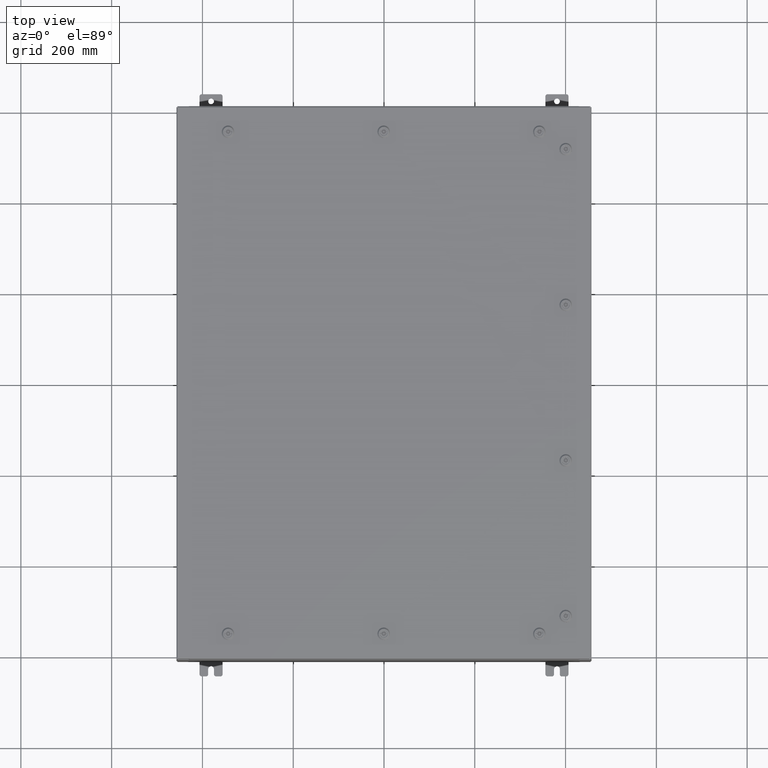
[diagram: clean part render]
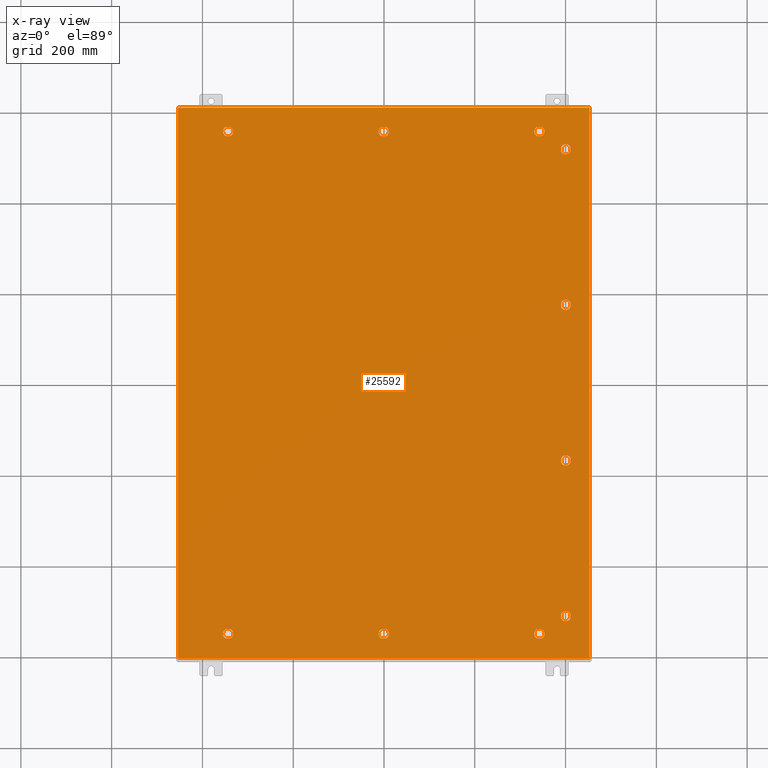
[diagram: x-ray — body ghosted, one internal face saturated and labeled with its STEP entity id]
A machine part, top view, then the same camera in x-ray: the body is ghosted and one INTERNAL B-rep face — a face not visible from any outside direction — is saturated and labeled: STEP entity #25592.
In plain terms, the highlighted planar face has unit normal (0, 0, -1).
Its self-contained STEP definition (entity closure, byte-faithful):
#128 = CARTESIAN_POINT ( 'NONE',  ( 13.94249999999998500, -21.78780000000000400, -0.07470000000000003000 ) ) ;
#283 = DIRECTION ( 'NONE',  ( -0.0000000000000000000, -0.0000000000000000000, 1.000000000000000000 ) ) ;
#345 = EDGE_CURVE ( 'NONE', #15234, #38640, #32799, .T. ) ;
#551 = DIRECTION ( 'NONE',  ( -1.000000000000000000, 2.469467112916857400E-015, 0.0000000000000000000 ) ) ;
#585 = AXIS2_PLACEMENT_3D ( 'NONE', #6349, #23238, #31363 ) ;
#697 = DIRECTION ( 'NONE',  ( -1.000000000000000000, 0.0000000000000000000, 0.0000000000000000000 ) ) ;
#903 = CARTESIAN_POINT ( 'NONE',  ( 15.39280000000001400, 6.550547624732131700, -0.07470000000000003000 ) ) ;
#1012 = DIRECTION ( 'NONE',  ( -0.0000000000000000000, -0.0000000000000000000, 1.000000000000000000 ) ) ;
#1084 = FACE_BOUND ( 'NONE', #34563, .T. ) ;
#1277 = DIRECTION ( 'NONE',  ( -5.478697338139280800E-015, 1.000000000000000000, 0.0000000000000000000 ) ) ;
#1287 = EDGE_LOOP ( 'NONE', ( #32098, #57663, #62778, #62015, #17317 ) ) ;
#1304 = AXIS2_PLACEMENT_3D ( 'NONE', #57431, #25663, #62815 ) ;
#2270 = EDGE_CURVE ( 'NONE', #43374, #15234, #60881, .T. ) ;
#2485 = DIRECTION ( 'NONE',  ( -1.095739467627835000E-014, -1.000000000000000000, 0.0000000000000000000 ) ) ;
#2588 = VERTEX_POINT ( 'NONE', #11324 ) ;
#2657 = CIRCLE ( 'NONE', #66948, 0.4424999999999983400 ) ;
#2726 = FACE_BOUND ( 'NONE', #47332, .T. ) ;
#2907 = ORIENTED_EDGE ( 'NONE', *, *, #23919, .T. ) ;
#2908 = DIRECTION ( 'NONE',  ( -1.000000000000000000, 1.095739467627836300E-014, 0.0000000000000000000 ) ) ;
#2909 = LINE ( 'NONE', #64652, #29454 ) ;
#3208 = EDGE_CURVE ( 'NONE', #23237, #14007, #13445, .T. ) ;
#3346 = LINE ( 'NONE', #49253, #59794 ) ;
#3777 = CARTESIAN_POINT ( 'NONE',  ( 0.4425000000000125500, -21.78780000000000400, -0.07470000000000003000 ) ) ;
#3887 = EDGE_CURVE ( 'NONE', #28466, #36714, #59191, .T. ) ;
#4427 = CARTESIAN_POINT ( 'NONE',  ( -13.69945237526786900, 21.39280000000001200, -0.07470000000000003000 ) ) ;
#4448 = DIRECTION ( 'NONE',  ( -0.0000000000000000000, -0.0000000000000000000, 1.000000000000000000 ) ) ;
#4587 = VERTEX_POINT ( 'NONE', #12378 ) ;
#4760 = AXIS2_PLACEMENT_3D ( 'NONE', #42109, #10313, #47441 ) ;
#5199 = EDGE_LOOP ( 'NONE', ( #32300, #60750, #53027, #47316 ) ) ;
#5725 = VERTEX_POINT ( 'NONE', #11120 ) ;
#5916 = DIRECTION ( 'NONE',  ( -1.000000000000000000, 0.0000000000000000000, 0.0000000000000000000 ) ) ;
#5974 = EDGE_CURVE ( 'NONE', #51132, #19643, #34920, .T. ) ;
#6225 = DIRECTION ( 'NONE',  ( -0.0000000000000000000, -0.0000000000000000000, 1.000000000000000000 ) ) ;
#6349 = CARTESIAN_POINT ( 'NONE',  ( -13.49999999999998600, -21.78780000000000800, -0.07470000000000003000 ) ) ;
#6832 = CARTESIAN_POINT ( 'NONE',  ( 16.18280000000000400, -6.949452375267900300, -0.07470000000000003000 ) ) ;
#6896 = VERTEX_POINT ( 'NONE', #23674 ) ;
#7295 = LINE ( 'NONE', #27938, #19754 ) ;
#7299 = CIRCLE ( 'NONE', #64750, 0.4424999999999961700 ) ;
#7303 = ORIENTED_EDGE ( 'NONE', *, *, #2270, .T. ) ;
#7397 = CARTESIAN_POINT ( 'NONE',  ( -13.69945237526786900, -22.18280000000000700, -0.07470000000000003000 ) ) ;
#7480 = ORIENTED_EDGE ( 'NONE', *, *, #59427, .T. ) ;
#7615 = VECTOR ( 'NONE', #31162, 39.37007874015748100 ) ;
#8151 = LINE ( 'NONE', #64610, #38095 ) ;
#8369 = CIRCLE ( 'NONE', #4760, 0.4424999999999983400 ) ;
#8652 = EDGE_CURVE ( 'NONE', #19950, #2588, #29890, .T. ) ;
#8801 = CARTESIAN_POINT ( 'NONE',  ( -17.84979999999999500, 23.84980000000000900, -0.07470000000000129300 ) ) ;
#9142 = CARTESIAN_POINT ( 'NONE',  ( 13.69945237526786700, 22.18280000000000400, -0.07470000000000003000 ) ) ;
#9593 = EDGE_CURVE ( 'NONE', #30109, #28466, #54708, .T. ) ;
#9775 = CARTESIAN_POINT ( 'NONE',  ( -13.69945237526786700, 22.18280000000000400, -0.07470000000000003000 ) ) ;
#10276 = ORIENTED_EDGE ( 'NONE', *, *, #38667, .T. ) ;
#10313 = DIRECTION ( 'NONE',  ( -0.0000000000000000000, -0.0000000000000000000, 1.000000000000000000 ) ) ;
#10608 = CARTESIAN_POINT ( 'NONE',  ( 16.18280000000000700, 6.949452375267900300, -0.07470000000000000300 ) ) ;
#10652 = VECTOR ( 'NONE', #18757, 39.37007874015748100 ) ;
#10699 = VECTOR ( 'NONE', #54441, 39.37007874015748100 ) ;
#10891 = ORIENTED_EDGE ( 'NONE', *, *, #3208, .T. ) ;
#10897 = CARTESIAN_POINT ( 'NONE',  ( -13.30054762473209400, 22.18280000000000000, -0.07470000000000003000 ) ) ;
#10923 = CARTESIAN_POINT ( 'NONE',  ( 17.84980000000000200, 23.84980000000000200, -0.07470000000000000300 ) ) ;
#11120 = CARTESIAN_POINT ( 'NONE',  ( -13.30054762473209400, 22.18280000000000000, -0.07470000000000003000 ) ) ;
#11324 = CARTESIAN_POINT ( 'NONE',  ( 13.30054762473209500, -22.18280000000000000, -0.07470000000000003000 ) ) ;
#11334 = DIRECTION ( 'NONE',  ( -1.000000000000000000, 0.0000000000000000000, 0.0000000000000000000 ) ) ;
#11501 = DIRECTION ( 'NONE',  ( -1.000000000000000000, -1.095739467627832000E-014, 0.0000000000000000000 ) ) ;
#11521 = CIRCLE ( 'NONE', #41741, 0.4424999999999983400 ) ;
#11565 = ORIENTED_EDGE ( 'NONE', *, *, #41498, .T. ) ;
#11976 = VECTOR ( 'NONE', #54831, 39.37007874015748100 ) ;
#12220 = CARTESIAN_POINT ( 'NONE',  ( -0.1994523752678689600, 21.39280000000001200, -0.07470000000000003000 ) ) ;
#12378 = CARTESIAN_POINT ( 'NONE',  ( 16.18280000000000700, 6.550547624732131700, -0.07470000000000003000 ) ) ;
#12486 = CARTESIAN_POINT ( 'NONE',  ( 15.39280000000001900, 20.05054762473213300, -0.07470000000000003000 ) ) ;
#12542 = ORIENTED_EDGE ( 'NONE', *, *, #54392, .T. ) ;
#12619 = EDGE_CURVE ( 'NONE', #41891, #29641, #25448, .T. ) ;
#12657 = AXIS2_PLACEMENT_3D ( 'NONE', #38016, #6225, #43336 ) ;
#12770 = CARTESIAN_POINT ( 'NONE',  ( 1.529834876451987200E-014, 21.78780000000000400, -0.07470000000000003000 ) ) ;
#12985 = ORIENTED_EDGE ( 'NONE', *, *, #46985, .T. ) ;
#13385 = CARTESIAN_POINT ( 'NONE',  ( 15.39280000000002800, -20.44945237526790300, -0.07470000000000003000 ) ) ;
#13445 = CIRCLE ( 'NONE', #68491, 0.4424999999999983400 ) ;
#13480 = FACE_BOUND ( 'NONE', #61596, .T. ) ;
#13717 = EDGE_CURVE ( 'NONE', #4587, #39098, #66060, .T. ) ;
#14007 = VERTEX_POINT ( 'NONE', #7397 ) ;
#14057 = LINE ( 'NONE', #58902, #40661 ) ;
#14059 = ORIENTED_EDGE ( 'NONE', *, *, #50736, .T. ) ;
#14102 = DIRECTION ( 'NONE',  ( -1.000000000000000000, -0.0000000000000000000, -0.0000000000000000000 ) ) ;
#14904 = ORIENTED_EDGE ( 'NONE', *, *, #26465, .T. ) ;
#14917 = DIRECTION ( 'NONE',  ( -0.0000000000000000000, -0.0000000000000000000, 1.000000000000000000 ) ) ;
#15012 = CARTESIAN_POINT ( 'NONE',  ( -13.30054762473210400, -21.39280000000001500, -0.07470000000000003000 ) ) ;
#15177 = FACE_BOUND ( 'NONE', #56824, .T. ) ;
#15234 = VERTEX_POINT ( 'NONE', #128 ) ;
#15245 = CARTESIAN_POINT ( 'NONE',  ( 15.39280000000002200, -20.05054762473213300, -0.07470000000000003000 ) ) ;
#15309 = CARTESIAN_POINT ( 'NONE',  ( -13.30054762473210200, 21.39280000000001200, -0.07470000000000000300 ) ) ;
#15356 = CARTESIAN_POINT ( 'NONE',  ( 15.39280000000002200, 20.44945237526790300, -0.07470000000000003000 ) ) ;
#15569 = LINE ( 'NONE', #34669, #26364 ) ;
#15614 = DIRECTION ( 'NONE',  ( -0.0000000000000000000, -0.0000000000000000000, 1.000000000000000000 ) ) ;
#16160 = CARTESIAN_POINT ( 'NONE',  ( 13.30054762473210200, 21.39280000000001200, -0.07470000000000003000 ) ) ;
#16354 = CARTESIAN_POINT ( 'NONE',  ( 13.69945237526786900, -22.18280000000000400, -0.07470000000000003000 ) ) ;
#16548 = VERTEX_POINT ( 'NONE', #49870 ) ;
#16575 = CARTESIAN_POINT ( 'NONE',  ( 13.49999999999998600, 21.78780000000000400, -0.07470000000000003000 ) ) ;
#16656 = LINE ( 'NONE', #28464, #59005 ) ;
#16743 = CARTESIAN_POINT ( 'NONE',  ( 15.78780000000000800, -6.750000000000014200, -0.07470000000000003000 ) ) ;
#17317 = ORIENTED_EDGE ( 'NONE', *, *, #39551, .T. ) ;
#17453 = DIRECTION ( 'NONE',  ( -0.0000000000000000000, -0.0000000000000000000, 1.000000000000000000 ) ) ;
#17472 = DIRECTION ( 'NONE',  ( -1.000000000000000000, 0.0000000000000000000, 0.0000000000000000000 ) ) ;
#17526 = EDGE_CURVE ( 'NONE', #64903, #68391, #67983, .T. ) ;
#17666 = ORIENTED_EDGE ( 'NONE', *, *, #56444, .T. ) ;
#17683 = CIRCLE ( 'NONE', #67674, 0.4424999999999983400 ) ;
#17918 = ORIENTED_EDGE ( 'NONE', *, *, #38963, .T. ) ;
#17936 = EDGE_CURVE ( 'NONE', #16548, #21527, #28070, .T. ) ;
#18135 = DIRECTION ( 'NONE',  ( -1.000000000000000000, 0.0000000000000000000, 0.0000000000000000000 ) ) ;
#18270 = CARTESIAN_POINT ( 'NONE',  ( 15.39280000000001900, 6.949452375267904700, -0.07470000000000003000 ) ) ;
#18476 = EDGE_LOOP ( 'NONE', ( #55251, #7480, #14059, #65283, #39304 ) ) ;
#18757 = DIRECTION ( 'NONE',  ( 1.095739467627844000E-014, -1.000000000000000000, 0.0000000000000000000 ) ) ;
#18798 = ORIENTED_EDGE ( 'NONE', *, *, #8652, .T. ) ;
#18965 = EDGE_CURVE ( 'NONE', #37781, #35411, #25632, .T. ) ;
#19164 = ORIENTED_EDGE ( 'NONE', *, *, #43164, .T. ) ;
#19382 = EDGE_CURVE ( 'NONE', #35411, #43064, #31445, .T. ) ;
#19504 = DIRECTION ( 'NONE',  ( 0.0000000000000000000, -1.000000000000000000, 0.0000000000000000000 ) ) ;
#19643 = VERTEX_POINT ( 'NONE', #15012 ) ;
#19754 = VECTOR ( 'NONE', #54575, 39.37007874015748100 ) ;
#19950 = VERTEX_POINT ( 'NONE', #23317 ) ;
#20204 = CARTESIAN_POINT ( 'NONE',  ( 13.49999999999998600, -21.78780000000000400, -0.07470000000000003000 ) ) ;
#20477 = PLANE ( 'NONE',  #66037 ) ;
#21527 = VERTEX_POINT ( 'NONE', #49791 ) ;
#21684 = ORIENTED_EDGE ( 'NONE', *, *, #30513, .T. ) ;
#21750 = VERTEX_POINT ( 'NONE', #9142 ) ;
#21897 = DIRECTION ( 'NONE',  ( -1.000000000000000000, 0.0000000000000000000, 0.0000000000000000000 ) ) ;
#22075 = DIRECTION ( 'NONE',  ( -1.000000000000000000, 0.0000000000000000000, 0.0000000000000000000 ) ) ;
#22244 = ORIENTED_EDGE ( 'NONE', *, *, #5974, .T. ) ;
#22619 = AXIS2_PLACEMENT_3D ( 'NONE', #30278, #67430, #35607 ) ;
#22842 = VERTEX_POINT ( 'NONE', #9775 ) ;
#23121 = AXIS2_PLACEMENT_3D ( 'NONE', #32066, #283, #37427 ) ;
#23141 = LINE ( 'NONE', #43798, #10699 ) ;
#23237 = VERTEX_POINT ( 'NONE', #61185 ) ;
#23238 = DIRECTION ( 'NONE',  ( -0.0000000000000000000, -0.0000000000000000000, 1.000000000000000000 ) ) ;
#23317 = CARTESIAN_POINT ( 'NONE',  ( 13.30054762473210400, -21.39280000000001200, -0.07470000000000000300 ) ) ;
#23674 = CARTESIAN_POINT ( 'NONE',  ( 16.18280000000001500, -20.44945237526789600, -0.07470000000000003000 ) ) ;
#23675 = ORIENTED_EDGE ( 'NONE', *, *, #52489, .T. ) ;
#23779 = CARTESIAN_POINT ( 'NONE',  ( 13.30054762473209500, -22.18280000000000000, -0.07470000000000003000 ) ) ;
#23826 = EDGE_CURVE ( 'NONE', #68391, #37509, #43547, .T. ) ;
#23919 = EDGE_CURVE ( 'NONE', #64970, #30279, #68488, .T. ) ;
#23997 = ORIENTED_EDGE ( 'NONE', *, *, #19382, .T. ) ;
#24471 = CARTESIAN_POINT ( 'NONE',  ( 1.529834876451987200E-014, 21.78780000000000400, -0.07470000000000003000 ) ) ;
#24828 = CARTESIAN_POINT ( 'NONE',  ( -13.30054762473209500, -22.18280000000000400, -0.07470000000000000300 ) ) ;
#25448 = LINE ( 'NONE', #45902, #55317 ) ;
#25592 = ADVANCED_FACE ( 'NONE', ( #57513, #2726, #15177, #1084, #55846, #29274, #41758, #27644, #13480, #68354, #54185 ), #20477, .T. ) ;
#25632 = CIRCLE ( 'NONE', #54236, 0.4424999999999961700 ) ;
#25663 = DIRECTION ( 'NONE',  ( -0.0000000000000000000, -0.0000000000000000000, 1.000000000000000000 ) ) ;
#25726 = EDGE_LOOP ( 'NONE', ( #51620, #23997, #17918, #47885 ) ) ;
#25767 = VECTOR ( 'NONE', #2485, 39.37007874015748100 ) ;
#25812 = DIRECTION ( 'NONE',  ( -1.000000000000000000, 0.0000000000000000000, -0.0000000000000000000 ) ) ;
#26034 = DIRECTION ( 'NONE',  ( -0.0000000000000000000, -0.0000000000000000000, 1.000000000000000000 ) ) ;
#26364 = VECTOR ( 'NONE', #2908, 39.37007874015748100 ) ;
#26465 = EDGE_CURVE ( 'NONE', #30279, #16548, #2657, .T. ) ;
#26526 = VECTOR ( 'NONE', #50002, 39.37007874015748100 ) ;
#27180 = CARTESIAN_POINT ( 'NONE',  ( 15.78780000000001000, 6.750000000000014200, -0.07470000000000003000 ) ) ;
#27408 = LINE ( 'NONE', #16160, #53965 ) ;
#27600 = EDGE_CURVE ( 'NONE', #62624, #34473, #8369, .T. ) ;
#27644 = FACE_BOUND ( 'NONE', #49436, .T. ) ;
#27938 = CARTESIAN_POINT ( 'NONE',  ( 16.18280000000001500, -20.44945237526789600, -0.07470000000000003000 ) ) ;
#27941 = CARTESIAN_POINT ( 'NONE',  ( 16.18280000000001100, 20.44945237526789600, -0.07470000000000000300 ) ) ;
#28070 = LINE ( 'NONE', #28742, #68808 ) ;
#28336 = VECTOR ( 'NONE', #67961, 39.37007874015748100 ) ;
#28464 = CARTESIAN_POINT ( 'NONE',  ( -17.84979999999999800, -23.84980000000000200, -0.07469999999999804600 ) ) ;
#28466 = VERTEX_POINT ( 'NONE', #47097 ) ;
#28502 = ORIENTED_EDGE ( 'NONE', *, *, #52916, .T. ) ;
#28742 = CARTESIAN_POINT ( 'NONE',  ( 15.39280000000001500, -6.949452375267904700, -0.07470000000000003000 ) ) ;
#28874 = DIRECTION ( 'NONE',  ( -0.0000000000000000000, -0.0000000000000000000, 1.000000000000000000 ) ) ;
#29039 = VERTEX_POINT ( 'NONE', #51572 ) ;
#29101 = EDGE_CURVE ( 'NONE', #34473, #5725, #46475, .T. ) ;
#29127 = DIRECTION ( 'NONE',  ( -0.0000000000000000000, -0.0000000000000000000, 1.000000000000000000 ) ) ;
#29156 = CARTESIAN_POINT ( 'NONE',  ( 0.1994523752679054600, -22.18280000000000400, -0.07470000000000000300 ) ) ;
#29274 = FACE_BOUND ( 'NONE', #63164, .T. ) ;
#29454 = VECTOR ( 'NONE', #11501, 39.37007874015748100 ) ;
#29641 = VERTEX_POINT ( 'NONE', #67297 ) ;
#29890 = CIRCLE ( 'NONE', #12657, 0.4424999999999961700 ) ;
#29922 = ORIENTED_EDGE ( 'NONE', *, *, #27600, .T. ) ;
#29938 = CARTESIAN_POINT ( 'NONE',  ( 15.78780000000001800, -20.25000000000001400, -0.07470000000000003000 ) ) ;
#30096 = EDGE_CURVE ( 'NONE', #41389, #64903, #23141, .T. ) ;
#30109 = VERTEX_POINT ( 'NONE', #12220 ) ;
#30278 = CARTESIAN_POINT ( 'NONE',  ( 13.49999999999998600, 21.78780000000000400, -0.07470000000000003000 ) ) ;
#30279 = VERTEX_POINT ( 'NONE', #39583 ) ;
#30357 = CARTESIAN_POINT ( 'NONE',  ( -0.1994523752678657700, -22.18280000000000400, -0.07470000000000003000 ) ) ;
#30421 = EDGE_CURVE ( 'NONE', #60883, #4587, #11521, .T. ) ;
#30513 = EDGE_CURVE ( 'NONE', #14007, #62423, #8151, .T. ) ;
#30673 = CIRCLE ( 'NONE', #41228, 0.4424999999999961700 ) ;
#31000 = VERTEX_POINT ( 'NONE', #44504 ) ;
#31069 = CARTESIAN_POINT ( 'NONE',  ( 15.78780000000001500, 20.25000000000001400, -0.07470000000000003000 ) ) ;
#31162 = DIRECTION ( 'NONE',  ( 0.0000000000000000000, 1.000000000000000000, 0.0000000000000000000 ) ) ;
#31363 = DIRECTION ( 'NONE',  ( -1.000000000000000000, 0.0000000000000000000, 0.0000000000000000000 ) ) ;
#31445 = LINE ( 'NONE', #13385, #10652 ) ;
#31459 = VERTEX_POINT ( 'NONE', #43247 ) ;
#31460 = EDGE_CURVE ( 'NONE', #58145, #47366, #54697, .T. ) ;
#31471 = CARTESIAN_POINT ( 'NONE',  ( 1.529834876451987200E-014, -21.78780000000000400, -0.07470000000000003000 ) ) ;
#32066 = CARTESIAN_POINT ( 'NONE',  ( 1.529834876451987200E-014, -21.78780000000000400, -0.07470000000000003000 ) ) ;
#32098 = ORIENTED_EDGE ( 'NONE', *, *, #53920, .T. ) ;
#32300 = ORIENTED_EDGE ( 'NONE', *, *, #48219, .F. ) ;
#32343 = DIRECTION ( 'NONE',  ( -0.0000000000000000000, -0.0000000000000000000, 1.000000000000000000 ) ) ;
#32491 = DIRECTION ( 'NONE',  ( -0.0000000000000000000, -0.0000000000000000000, 1.000000000000000000 ) ) ;
#32522 = DIRECTION ( 'NONE',  ( -1.000000000000000000, 0.0000000000000000000, 0.0000000000000000000 ) ) ;
#32671 = CARTESIAN_POINT ( 'NONE',  ( 0.4425000000000125500, 21.78780000000000400, -0.07470000000000003000 ) ) ;
#32673 = EDGE_CURVE ( 'NONE', #36714, #38974, #33871, .T. ) ;
#32796 = CARTESIAN_POINT ( 'NONE',  ( 13.49999999999998600, 21.78780000000000400, -0.07470000000000003000 ) ) ;
#32799 = CIRCLE ( 'NONE', #36342, 0.4424999999999983400 ) ;
#32803 = DIRECTION ( 'NONE',  ( 1.000000000000000000, 1.095739467627832000E-014, 0.0000000000000000000 ) ) ;
#32960 = CARTESIAN_POINT ( 'NONE',  ( 16.18280000000000700, 6.949452375267900300, -0.07470000000000003000 ) ) ;
#33095 = AXIS2_PLACEMENT_3D ( 'NONE', #64310, #32491, #697 ) ;
#33100 = ORIENTED_EDGE ( 'NONE', *, *, #30421, .T. ) ;
#33254 = VECTOR ( 'NONE', #53353, 39.37007874015748100 ) ;
#33308 = ORIENTED_EDGE ( 'NONE', *, *, #36637, .T. ) ;
#33871 = CIRCLE ( 'NONE', #55125, 0.4424999999999972800 ) ;
#33931 = ORIENTED_EDGE ( 'NONE', *, *, #30096, .T. ) ;
#34105 = DIRECTION ( 'NONE',  ( 1.095739467627835000E-014, -1.000000000000000000, 0.0000000000000000000 ) ) ;
#34116 = AXIS2_PLACEMENT_3D ( 'NONE', #16743, #53841, #22075 ) ;
#34185 = CARTESIAN_POINT ( 'NONE',  ( -13.30054762473210200, 21.39280000000001200, -0.07470000000000003000 ) ) ;
#34207 = AXIS2_PLACEMENT_3D ( 'NONE', #32796, #1012, #38151 ) ;
#34264 = VECTOR ( 'NONE', #19504, 39.37007874015748100 ) ;
#34473 = VERTEX_POINT ( 'NONE', #51294 ) ;
#34563 = EDGE_LOOP ( 'NONE', ( #33100, #64909, #12985, #17666 ) ) ;
#34669 = CARTESIAN_POINT ( 'NONE',  ( 0.1994523752679067700, 22.18280000000000000, -0.07470000000000003000 ) ) ;
#34920 = CIRCLE ( 'NONE', #585, 0.4424999999999961700 ) ;
#35240 = CARTESIAN_POINT ( 'NONE',  ( 13.49999999999998600, -21.78780000000000400, -0.07470000000000003000 ) ) ;
#35256 = DIRECTION ( 'NONE',  ( -1.000000000000000000, 0.0000000000000000000, 0.0000000000000000000 ) ) ;
#35411 = VERTEX_POINT ( 'NONE', #15245 ) ;
#35607 = DIRECTION ( 'NONE',  ( -1.000000000000000000, 0.0000000000000000000, 0.0000000000000000000 ) ) ;
#35721 = CARTESIAN_POINT ( 'NONE',  ( 13.30054762473210200, 21.39280000000001200, -0.07470000000000003000 ) ) ;
#36077 = CIRCLE ( 'NONE', #37395, 0.4424999999999972800 ) ;
#36161 = CARTESIAN_POINT ( 'NONE',  ( 0.1994523752678995500, -21.39280000000001200, -0.07470000000000003000 ) ) ;
#36215 = CARTESIAN_POINT ( 'NONE',  ( 15.78780000000000800, -6.750000000000014200, -0.07470000000000003000 ) ) ;
#36329 = CIRCLE ( 'NONE', #22619, 0.4424999999999961700 ) ;
#36342 = AXIS2_PLACEMENT_3D ( 'NONE', #20204, #49151, #58460 ) ;
#36400 = DIRECTION ( 'NONE',  ( -1.000000000000000000, 0.0000000000000000000, 0.0000000000000000000 ) ) ;
#36637 = EDGE_CURVE ( 'NONE', #38640, #19950, #14057, .T. ) ;
#36714 = VERTEX_POINT ( 'NONE', #32671 ) ;
#36787 = DIRECTION ( 'NONE',  ( -1.000000000000000000, 9.877868451667453200E-015, 0.0000000000000000000 ) ) ;
#36921 = VERTEX_POINT ( 'NONE', #18270 ) ;
#37395 = AXIS2_PLACEMENT_3D ( 'NONE', #31471, #68611, #36787 ) ;
#37427 = DIRECTION ( 'NONE',  ( -1.000000000000000000, 0.0000000000000000000, 0.0000000000000000000 ) ) ;
#37509 = VERTEX_POINT ( 'NONE', #27941 ) ;
#37781 = VERTEX_POINT ( 'NONE', #50865 ) ;
#37939 = VERTEX_POINT ( 'NONE', #3777 ) ;
#38016 = CARTESIAN_POINT ( 'NONE',  ( 13.49999999999998600, -21.78780000000000400, -0.07470000000000003000 ) ) ;
#38095 = VECTOR ( 'NONE', #32803, 39.37007874015748100 ) ;
#38151 = DIRECTION ( 'NONE',  ( -1.000000000000000000, 0.0000000000000000000, 0.0000000000000000000 ) ) ;
#38202 = AXIS2_PLACEMENT_3D ( 'NONE', #60926, #29127, #66274 ) ;
#38640 = VERTEX_POINT ( 'NONE', #46599 ) ;
#38667 = EDGE_CURVE ( 'NONE', #37509, #41389, #7299, .T. ) ;
#38963 = EDGE_CURVE ( 'NONE', #43064, #6896, #41342, .T. ) ;
#38974 = VERTEX_POINT ( 'NONE', #61738 ) ;
#39098 = VERTEX_POINT ( 'NONE', #10608 ) ;
#39304 = ORIENTED_EDGE ( 'NONE', *, *, #48934, .T. ) ;
#39459 = AXIS2_PLACEMENT_3D ( 'NONE', #12770, #49911, #18135 ) ;
#39551 = EDGE_CURVE ( 'NONE', #38974, #65529, #15569, .T. ) ;
#39583 = CARTESIAN_POINT ( 'NONE',  ( 16.18280000000000700, -6.550547624732131700, -0.07470000000000003000 ) ) ;
#39730 = DIRECTION ( 'NONE',  ( 1.000000000000000000, 0.0000000000000000000, 0.0000000000000000000 ) ) ;
#40296 = CARTESIAN_POINT ( 'NONE',  ( 0.1994523752679067700, -22.18280000000000000, -0.07470000000000003000 ) ) ;
#40661 = VECTOR ( 'NONE', #11334, 39.37007874015748100 ) ;
#40794 = LINE ( 'NONE', #36161, #28336 ) ;
#41228 = AXIS2_PLACEMENT_3D ( 'NONE', #60687, #28874, #66036 ) ;
#41342 = CIRCLE ( 'NONE', #52731, 0.4424999999999961700 ) ;
#41389 = VERTEX_POINT ( 'NONE', #15356 ) ;
#41474 = CARTESIAN_POINT ( 'NONE',  ( 13.30054762473209400, 22.18280000000000000, -0.07470000000000000300 ) ) ;
#41498 = EDGE_CURVE ( 'NONE', #21527, #64970, #54426, .T. ) ;
#41556 = LINE ( 'NONE', #66064, #25767 ) ;
#41560 = DIRECTION ( 'NONE',  ( -1.000000000000000000, 0.0000000000000000000, 0.0000000000000000000 ) ) ;
#41741 = AXIS2_PLACEMENT_3D ( 'NONE', #64161, #32343, #551 ) ;
#41758 = FACE_BOUND ( 'NONE', #18476, .T. ) ;
#41889 = VECTOR ( 'NONE', #1277, 39.37007874015748100 ) ;
#41891 = VERTEX_POINT ( 'NONE', #10923 ) ;
#42109 = CARTESIAN_POINT ( 'NONE',  ( -13.49999999999998600, 21.78780000000000400, -0.07470000000000003000 ) ) ;
#42193 = CIRCLE ( 'NONE', #39459, 0.4424999999999969000 ) ;
#43064 = VERTEX_POINT ( 'NONE', #54874 ) ;
#43070 = CARTESIAN_POINT ( 'NONE',  ( -0.1994523752678657700, 22.18280000000000400, -0.07470000000000003000 ) ) ;
#43164 = EDGE_CURVE ( 'NONE', #2588, #43374, #46155, .T. ) ;
#43197 = DIRECTION ( 'NONE',  ( -1.000000000000000000, 0.0000000000000000000, 0.0000000000000000000 ) ) ;
#43247 = CARTESIAN_POINT ( 'NONE',  ( 13.69945237526786900, 21.39280000000001200, -0.07470000000000003000 ) ) ;
#43336 = DIRECTION ( 'NONE',  ( -1.000000000000000000, -9.877868451667478400E-015, 0.0000000000000000000 ) ) ;
#43374 = VERTEX_POINT ( 'NONE', #16354 ) ;
#43464 = AXIS2_PLACEMENT_3D ( 'NONE', #16575, #53673, #21897 ) ;
#43465 = LINE ( 'NONE', #34185, #57559 ) ;
#43547 = LINE ( 'NONE', #65084, #41889 ) ;
#43685 = DIRECTION ( 'NONE',  ( -1.000000000000000000, 9.877868451667453200E-015, 0.0000000000000000000 ) ) ;
#43798 = CARTESIAN_POINT ( 'NONE',  ( 15.39280000000002200, 20.44945237526790300, -0.07470000000000003000 ) ) ;
#43901 = CIRCLE ( 'NONE', #43464, 0.4424999999999961700 ) ;
#43946 = VECTOR ( 'NONE', #45611, 39.37007874015748100 ) ;
#44504 = CARTESIAN_POINT ( 'NONE',  ( 17.84980000000000200, -23.84979999999999800, -0.07470000000000000300 ) ) ;
#44655 = CARTESIAN_POINT ( 'NONE',  ( 0.1994523752678995500, 21.39280000000001200, -0.07470000000000003000 ) ) ;
#44736 = EDGE_CURVE ( 'NONE', #21750, #58145, #2909, .T. ) ;
#44955 = CARTESIAN_POINT ( 'NONE',  ( 0.1994523752679002700, -21.39280000000001200, -0.07470000000000003000 ) ) ;
#45352 = EDGE_CURVE ( 'NONE', #53964, #68508, #56805, .T. ) ;
#45554 = EDGE_CURVE ( 'NONE', #37939, #66182, #36077, .T. ) ;
#45611 = DIRECTION ( 'NONE',  ( 1.000000000000000000, 1.095739467627836300E-014, 0.0000000000000000000 ) ) ;
#45902 = CARTESIAN_POINT ( 'NONE',  ( 17.84980000000000200, 23.84980000000000900, -0.07469999999999804600 ) ) ;
#46155 = LINE ( 'NONE', #23779, #49496 ) ;
#46475 = CIRCLE ( 'NONE', #68402, 0.4424999999999983400 ) ;
#46579 = EDGE_CURVE ( 'NONE', #47450, #62624, #43465, .T. ) ;
#46599 = CARTESIAN_POINT ( 'NONE',  ( 13.69945237526787100, -21.39280000000001200, -0.07470000000000003000 ) ) ;
#46712 = CARTESIAN_POINT ( 'NONE',  ( 15.78780000000001800, -20.25000000000001400, -0.07470000000000003000 ) ) ;
#46918 = CARTESIAN_POINT ( 'NONE',  ( 0.0000000000000000000, 0.0000000000000000000, -0.07470000000000000300 ) ) ;
#46985 = EDGE_CURVE ( 'NONE', #39098, #36921, #17683, .T. ) ;
#47097 = CARTESIAN_POINT ( 'NONE',  ( 0.1994523752678995500, 21.39280000000001200, -0.07470000000000000300 ) ) ;
#47283 = LINE ( 'NONE', #40296, #43946 ) ;
#47316 = ORIENTED_EDGE ( 'NONE', *, *, #12619, .F. ) ;
#47320 = EDGE_CURVE ( 'NONE', #29641, #29039, #48401, .T. ) ;
#47332 = EDGE_LOOP ( 'NONE', ( #14904, #64266, #11565, #2907 ) ) ;
#47366 = VERTEX_POINT ( 'NONE', #35721 ) ;
#47402 = CARTESIAN_POINT ( 'NONE',  ( -13.49999999999998600, 21.78780000000000400, -0.07470000000000003000 ) ) ;
#47441 = DIRECTION ( 'NONE',  ( -1.000000000000000000, 0.0000000000000000000, 0.0000000000000000000 ) ) ;
#47450 = VERTEX_POINT ( 'NONE', #4427 ) ;
#47885 = ORIENTED_EDGE ( 'NONE', *, *, #55621, .T. ) ;
#47977 = ORIENTED_EDGE ( 'NONE', *, *, #50939, .T. ) ;
#48219 = EDGE_CURVE ( 'NONE', #31000, #41891, #48335, .T. ) ;
#48335 = LINE ( 'NONE', #68311, #7615 ) ;
#48401 = LINE ( 'NONE', #8801, #34264 ) ;
#48528 = DIRECTION ( 'NONE',  ( -0.0000000000000000000, -0.0000000000000000000, 1.000000000000000000 ) ) ;
#48934 = EDGE_CURVE ( 'NONE', #66182, #53964, #40794, .T. ) ;
#48943 = CARTESIAN_POINT ( 'NONE',  ( -13.05749999999999000, -21.78780000000000800, -0.07470000000000003000 ) ) ;
#49042 = LINE ( 'NONE', #10897, #33254 ) ;
#49151 = DIRECTION ( 'NONE',  ( -0.0000000000000000000, -0.0000000000000000000, 1.000000000000000000 ) ) ;
#49233 = DIRECTION ( 'NONE',  ( -0.0000000000000000000, -0.0000000000000000000, 1.000000000000000000 ) ) ;
#49253 = CARTESIAN_POINT ( 'NONE',  ( -13.30054762473210400, -21.39280000000001500, -0.07470000000000003000 ) ) ;
#49436 = EDGE_LOOP ( 'NONE', ( #62383, #28502, #57199, #60115, #62849 ) ) ;
#49496 = VECTOR ( 'NONE', #50229, 39.37007874015748100 ) ;
#49791 = CARTESIAN_POINT ( 'NONE',  ( 15.39280000000001500, -6.949452375267905600, -0.07470000000000000300 ) ) ;
#49870 = CARTESIAN_POINT ( 'NONE',  ( 15.39280000000001200, -6.550547624732131700, -0.07470000000000003000 ) ) ;
#49911 = DIRECTION ( 'NONE',  ( -0.0000000000000000000, -0.0000000000000000000, 1.000000000000000000 ) ) ;
#50002 = DIRECTION ( 'NONE',  ( 1.000000000000000000, 0.0000000000000000000, 0.0000000000000000000 ) ) ;
#50229 = DIRECTION ( 'NONE',  ( 1.000000000000000000, -1.095739467627832000E-014, 0.0000000000000000000 ) ) ;
#50736 = EDGE_CURVE ( 'NONE', #63964, #37939, #66496, .T. ) ;
#50865 = CARTESIAN_POINT ( 'NONE',  ( 16.18280000000001800, -20.05054762473213300, -0.07470000000000003000 ) ) ;
#50939 = EDGE_CURVE ( 'NONE', #5725, #22842, #49042, .T. ) ;
#51132 = VERTEX_POINT ( 'NONE', #48943 ) ;
#51294 = CARTESIAN_POINT ( 'NONE',  ( -13.05749999999998900, 21.78780000000000400, -0.07470000000000003000 ) ) ;
#51568 = EDGE_CURVE ( 'NONE', #47366, #31459, #27408, .T. ) ;
#51572 = CARTESIAN_POINT ( 'NONE',  ( -17.84979999999999800, -23.84979999999999800, -0.07470000000000000300 ) ) ;
#51620 = ORIENTED_EDGE ( 'NONE', *, *, #18965, .T. ) ;
#51951 = VECTOR ( 'NONE', #54284, 39.37007874015748100 ) ;
#52057 = DIRECTION ( 'NONE',  ( -1.000000000000000000, 0.0000000000000000000, 0.0000000000000000000 ) ) ;
#52489 = EDGE_CURVE ( 'NONE', #62423, #51132, #30673, .T. ) ;
#52731 = AXIS2_PLACEMENT_3D ( 'NONE', #29938, #67073, #35256 ) ;
#52737 = DIRECTION ( 'NONE',  ( -1.000000000000000000, 0.0000000000000000000, 0.0000000000000000000 ) ) ;
#52916 = EDGE_CURVE ( 'NONE', #59367, #21750, #43901, .T. ) ;
#53027 = ORIENTED_EDGE ( 'NONE', *, *, #47320, .F. ) ;
#53353 = DIRECTION ( 'NONE',  ( -1.000000000000000000, 1.095739467627832000E-014, 0.0000000000000000000 ) ) ;
#53673 = DIRECTION ( 'NONE',  ( -0.0000000000000000000, -0.0000000000000000000, 1.000000000000000000 ) ) ;
#53841 = DIRECTION ( 'NONE',  ( -0.0000000000000000000, -0.0000000000000000000, 1.000000000000000000 ) ) ;
#53920 = EDGE_CURVE ( 'NONE', #65529, #30109, #42193, .T. ) ;
#53964 = VERTEX_POINT ( 'NONE', #65937 ) ;
#53965 = VECTOR ( 'NONE', #58853, 39.37007874015748100 ) ;
#54185 = FACE_OUTER_BOUND ( 'NONE', #5199, .T. ) ;
#54236 = AXIS2_PLACEMENT_3D ( 'NONE', #46712, #14917, #52057 ) ;
#54284 = DIRECTION ( 'NONE',  ( -5.478697338139235000E-015, 1.000000000000000000, 0.0000000000000000000 ) ) ;
#54392 = EDGE_CURVE ( 'NONE', #22842, #47450, #67904, .T. ) ;
#54426 = CIRCLE ( 'NONE', #34116, 0.4424999999999983400 ) ;
#54441 = DIRECTION ( 'NONE',  ( -1.095739467627844000E-014, -1.000000000000000000, 0.0000000000000000000 ) ) ;
#54571 = EDGE_CURVE ( 'NONE', #31459, #59367, #36329, .T. ) ;
#54575 = DIRECTION ( 'NONE',  ( 5.478697338139280800E-015, 1.000000000000000000, 0.0000000000000000000 ) ) ;
#54697 = CIRCLE ( 'NONE', #34207, 0.4424999999999983400 ) ;
#54708 = LINE ( 'NONE', #44655, #26526 ) ;
#54787 = CARTESIAN_POINT ( 'NONE',  ( 16.18280000000001500, 20.05054762473213300, -0.07470000000000003000 ) ) ;
#54831 = DIRECTION ( 'NONE',  ( 5.478697338139235000E-015, 1.000000000000000000, 0.0000000000000000000 ) ) ;
#54874 = CARTESIAN_POINT ( 'NONE',  ( 15.39280000000002800, -20.44945237526790300, -0.07470000000000000300 ) ) ;
#55125 = AXIS2_PLACEMENT_3D ( 'NONE', #57809, #26034, #63187 ) ;
#55251 = ORIENTED_EDGE ( 'NONE', *, *, #45352, .T. ) ;
#55317 = VECTOR ( 'NONE', #14102, 39.37007874015748100 ) ;
#55621 = EDGE_CURVE ( 'NONE', #6896, #37781, #7295, .T. ) ;
#55747 = ORIENTED_EDGE ( 'NONE', *, *, #58290, .T. ) ;
#55846 = FACE_BOUND ( 'NONE', #59270, .T. ) ;
#56347 = EDGE_CURVE ( 'NONE', #29039, #31000, #16656, .T. ) ;
#56444 = EDGE_CURVE ( 'NONE', #36921, #60883, #41556, .T. ) ;
#56805 = CIRCLE ( 'NONE', #23121, 0.4424999999999969000 ) ;
#56824 = EDGE_LOOP ( 'NONE', ( #57621, #57235, #10276, #33931 ) ) ;
#57199 = ORIENTED_EDGE ( 'NONE', *, *, #44736, .T. ) ;
#57235 = ORIENTED_EDGE ( 'NONE', *, *, #23826, .T. ) ;
#57431 = CARTESIAN_POINT ( 'NONE',  ( 15.78780000000001500, 20.25000000000001400, -0.07470000000000003000 ) ) ;
#57513 = FACE_BOUND ( 'NONE', #25726, .T. ) ;
#57559 = VECTOR ( 'NONE', #39730, 39.37007874015748100 ) ;
#57583 = DIRECTION ( 'NONE',  ( 0.0000000000000000000, 0.0000000000000000000, -1.000000000000000000 ) ) ;
#57621 = ORIENTED_EDGE ( 'NONE', *, *, #17526, .T. ) ;
#57663 = ORIENTED_EDGE ( 'NONE', *, *, #9593, .T. ) ;
#57809 = CARTESIAN_POINT ( 'NONE',  ( 1.529834876451987200E-014, 21.78780000000000400, -0.07470000000000003000 ) ) ;
#58145 = VERTEX_POINT ( 'NONE', #41474 ) ;
#58184 = AXIS2_PLACEMENT_3D ( 'NONE', #35240, #48528, #43197 ) ;
#58189 = ORIENTED_EDGE ( 'NONE', *, *, #29101, .T. ) ;
#58290 = EDGE_CURVE ( 'NONE', #19643, #23237, #3346, .T. ) ;
#58460 = DIRECTION ( 'NONE',  ( -1.000000000000000000, 0.0000000000000000000, 0.0000000000000000000 ) ) ;
#58853 = DIRECTION ( 'NONE',  ( 1.000000000000000000, 0.0000000000000000000, 0.0000000000000000000 ) ) ;
#58902 = CARTESIAN_POINT ( 'NONE',  ( 13.30054762473210400, -21.39280000000001200, -0.07470000000000003000 ) ) ;
#59005 = VECTOR ( 'NONE', #65610, 39.37007874015748100 ) ;
#59191 = CIRCLE ( 'NONE', #65811, 0.4424999999999972800 ) ;
#59270 = EDGE_LOOP ( 'NONE', ( #7303, #64676, #33308, #18798, #19164 ) ) ;
#59367 = VERTEX_POINT ( 'NONE', #60292 ) ;
#59427 = EDGE_CURVE ( 'NONE', #68508, #63964, #47283, .T. ) ;
#59794 = VECTOR ( 'NONE', #17472, 39.37007874015748100 ) ;
#60115 = ORIENTED_EDGE ( 'NONE', *, *, #31460, .T. ) ;
#60292 = CARTESIAN_POINT ( 'NONE',  ( 13.94249999999998300, 21.78780000000000400, -0.07470000000000003000 ) ) ;
#60687 = CARTESIAN_POINT ( 'NONE',  ( -13.49999999999998600, -21.78780000000000800, -0.07470000000000003000 ) ) ;
#60744 = CARTESIAN_POINT ( 'NONE',  ( 16.18280000000000400, -6.949452375267900300, -0.07470000000000003000 ) ) ;
#60750 = ORIENTED_EDGE ( 'NONE', *, *, #56347, .F. ) ;
#60881 = CIRCLE ( 'NONE', #58184, 0.4424999999999983400 ) ;
#60883 = VERTEX_POINT ( 'NONE', #903 ) ;
#60926 = CARTESIAN_POINT ( 'NONE',  ( -13.49999999999998600, 21.78780000000000400, -0.07470000000000003000 ) ) ;
#61185 = CARTESIAN_POINT ( 'NONE',  ( -13.69945237526787100, -21.39280000000001500, -0.07470000000000003000 ) ) ;
#61596 = EDGE_LOOP ( 'NONE', ( #12542, #66698, #29922, #58189, #47977 ) ) ;
#61738 = CARTESIAN_POINT ( 'NONE',  ( 0.1994523752679049900, 22.18280000000000000, -0.07470000000000003000 ) ) ;
#62015 = ORIENTED_EDGE ( 'NONE', *, *, #32673, .T. ) ;
#62383 = ORIENTED_EDGE ( 'NONE', *, *, #54571, .T. ) ;
#62423 = VERTEX_POINT ( 'NONE', #24828 ) ;
#62624 = VERTEX_POINT ( 'NONE', #15309 ) ;
#62778 = ORIENTED_EDGE ( 'NONE', *, *, #3887, .T. ) ;
#62815 = DIRECTION ( 'NONE',  ( -1.000000000000000000, 0.0000000000000000000, 0.0000000000000000000 ) ) ;
#62849 = ORIENTED_EDGE ( 'NONE', *, *, #51568, .T. ) ;
#63164 = EDGE_LOOP ( 'NONE', ( #10891, #21684, #23675, #22244, #55747 ) ) ;
#63187 = DIRECTION ( 'NONE',  ( -1.000000000000000000, 0.0000000000000000000, 0.0000000000000000000 ) ) ;
#63964 = VERTEX_POINT ( 'NONE', #29156 ) ;
#64161 = CARTESIAN_POINT ( 'NONE',  ( 15.78780000000001000, 6.750000000000014200, -0.07470000000000003000 ) ) ;
#64266 = ORIENTED_EDGE ( 'NONE', *, *, #17936, .T. ) ;
#64310 = CARTESIAN_POINT ( 'NONE',  ( 1.529834876451987200E-014, -21.78780000000000400, -0.07470000000000003000 ) ) ;
#64337 = DIRECTION ( 'NONE',  ( -0.0000000000000000000, -0.0000000000000000000, 1.000000000000000000 ) ) ;
#64610 = CARTESIAN_POINT ( 'NONE',  ( -13.30054762473209500, -22.18280000000000400, -0.07470000000000003000 ) ) ;
#64652 = CARTESIAN_POINT ( 'NONE',  ( 13.30054762473209400, 22.18280000000000000, -0.07470000000000003000 ) ) ;
#64676 = ORIENTED_EDGE ( 'NONE', *, *, #345, .T. ) ;
#64750 = AXIS2_PLACEMENT_3D ( 'NONE', #31069, #68213, #36400 ) ;
#64903 = VERTEX_POINT ( 'NONE', #12486 ) ;
#64909 = ORIENTED_EDGE ( 'NONE', *, *, #13717, .T. ) ;
#64970 = VERTEX_POINT ( 'NONE', #60744 ) ;
#65084 = CARTESIAN_POINT ( 'NONE',  ( 16.18280000000001100, 20.44945237526789600, -0.07470000000000003000 ) ) ;
#65283 = ORIENTED_EDGE ( 'NONE', *, *, #45554, .T. ) ;
#65529 = VERTEX_POINT ( 'NONE', #43070 ) ;
#65610 = DIRECTION ( 'NONE',  ( 1.000000000000000000, -0.0000000000000000000, -0.0000000000000000000 ) ) ;
#65709 = CARTESIAN_POINT ( 'NONE',  ( -13.49999999999998600, -21.78780000000000800, -0.07470000000000003000 ) ) ;
#65811 = AXIS2_PLACEMENT_3D ( 'NONE', #24471, #49233, #43685 ) ;
#65937 = CARTESIAN_POINT ( 'NONE',  ( -0.1994523752678689600, -21.39280000000001200, -0.07470000000000003000 ) ) ;
#66036 = DIRECTION ( 'NONE',  ( -1.000000000000000000, 0.0000000000000000000, 0.0000000000000000000 ) ) ;
#66037 = AXIS2_PLACEMENT_3D ( 'NONE', #46918, #57583, #25812 ) ;
#66060 = LINE ( 'NONE', #32960, #51951 ) ;
#66064 = CARTESIAN_POINT ( 'NONE',  ( 15.39280000000001900, 6.949452375267904700, -0.07470000000000003000 ) ) ;
#66182 = VERTEX_POINT ( 'NONE', #44955 ) ;
#66274 = DIRECTION ( 'NONE',  ( -1.000000000000000000, 0.0000000000000000000, 0.0000000000000000000 ) ) ;
#66496 = CIRCLE ( 'NONE', #33095, 0.4424999999999972800 ) ;
#66698 = ORIENTED_EDGE ( 'NONE', *, *, #46579, .T. ) ;
#66948 = AXIS2_PLACEMENT_3D ( 'NONE', #36215, #4448, #41560 ) ;
#67073 = DIRECTION ( 'NONE',  ( -0.0000000000000000000, -0.0000000000000000000, 1.000000000000000000 ) ) ;
#67297 = CARTESIAN_POINT ( 'NONE',  ( -17.84979999999999500, 23.84980000000000200, -0.07470000000000000300 ) ) ;
#67430 = DIRECTION ( 'NONE',  ( -0.0000000000000000000, -0.0000000000000000000, 1.000000000000000000 ) ) ;
#67674 = AXIS2_PLACEMENT_3D ( 'NONE', #27180, #64337, #32522 ) ;
#67904 = CIRCLE ( 'NONE', #38202, 0.4424999999999961700 ) ;
#67961 = DIRECTION ( 'NONE',  ( -1.000000000000000000, 0.0000000000000000000, 0.0000000000000000000 ) ) ;
#67983 = CIRCLE ( 'NONE', #1304, 0.4424999999999961700 ) ;
#68213 = DIRECTION ( 'NONE',  ( -0.0000000000000000000, -0.0000000000000000000, 1.000000000000000000 ) ) ;
#68311 = CARTESIAN_POINT ( 'NONE',  ( 17.84980000000000200, -23.84980000000000200, -0.07470000000000019700 ) ) ;
#68354 = FACE_BOUND ( 'NONE', #1287, .T. ) ;
#68391 = VERTEX_POINT ( 'NONE', #54787 ) ;
#68402 = AXIS2_PLACEMENT_3D ( 'NONE', #47402, #15614, #52737 ) ;
#68488 = LINE ( 'NONE', #6832, #11976 ) ;
#68491 = AXIS2_PLACEMENT_3D ( 'NONE', #65709, #17453, #5916 ) ;
#68508 = VERTEX_POINT ( 'NONE', #30357 ) ;
#68611 = DIRECTION ( 'NONE',  ( -0.0000000000000000000, -0.0000000000000000000, 1.000000000000000000 ) ) ;
#68808 = VECTOR ( 'NONE', #34105, 39.37007874015748100 ) ;